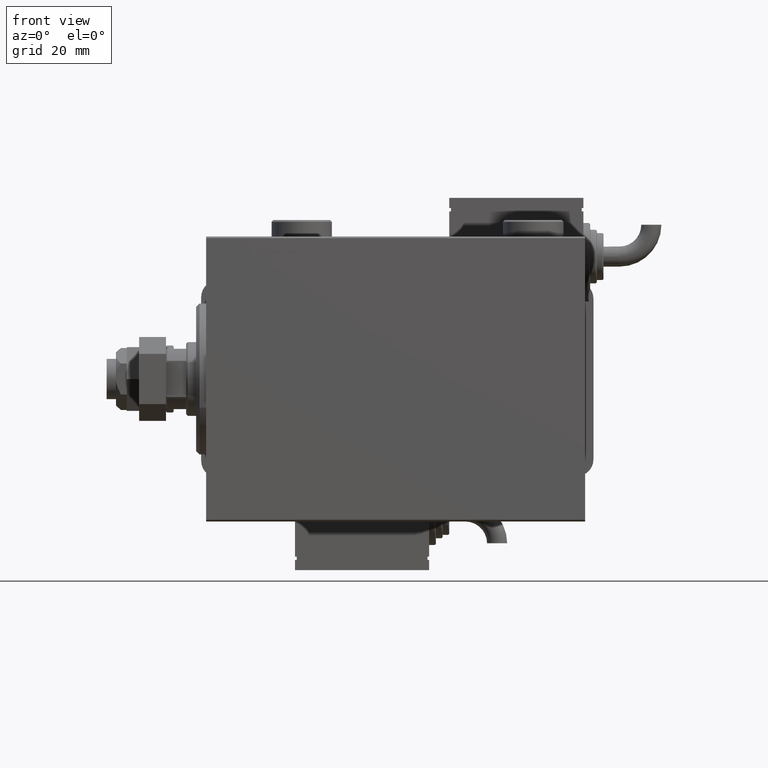
[diagram: clean part render]
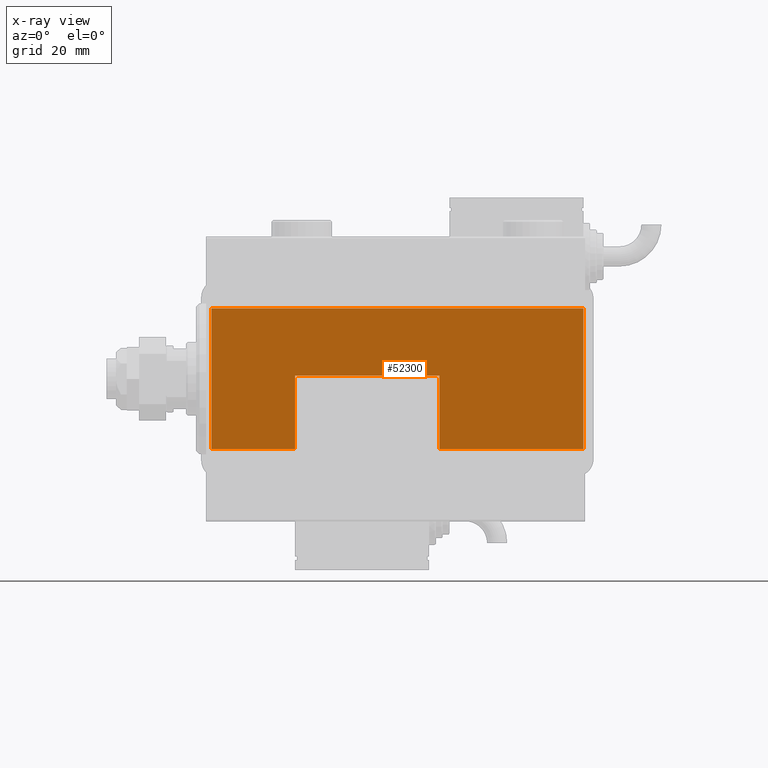
[diagram: x-ray — body ghosted, one internal face saturated and labeled with its STEP entity id]
A machine part, front view, then the same camera in x-ray: the body is ghosted and one INTERNAL B-rep face — a face not visible from any outside direction — is saturated and labeled: STEP entity #52300.
In plain terms, the highlighted planar face has unit normal (0, 1, -0).
Its self-contained STEP definition (entity closure, byte-faithful):
#116 = CARTESIAN_POINT ( 'NONE',  ( 1.000000000000014655, 22.79999999999999716, 114.0000000000000000 ) ) ;
#453 = DIRECTION ( 'NONE',  ( -1.000000000000000000, 0.000000000000000000, 0.000000000000000000 ) ) ;
#1025 = DIRECTION ( 'NONE',  ( 0.000000000000000000, -0.000000000000000000, 1.000000000000000000 ) ) ;
#1356 = CARTESIAN_POINT ( 'NONE',  ( -26.00000000000000000, 22.79999999999999716, 46.00000000000001421 ) ) ;
#1607 = VERTEX_POINT ( 'NONE', #54442 ) ;
#1870 = EDGE_CURVE ( 'NONE', #8438, #53932, #15825, .T. ) ;
#3238 = CARTESIAN_POINT ( 'NONE',  ( -26.00000000000000000, 22.79999999999999716, 89.00000000000001421 ) ) ;
#6552 = EDGE_CURVE ( 'NONE', #35659, #1607, #43270, .T. ) ;
#8438 = VERTEX_POINT ( 'NONE', #55611 ) ;
#8613 = LINE ( 'NONE', #58657, #9804 ) ;
#8809 = ORIENTED_EDGE ( 'NONE', *, *, #42600, .F. ) ;
#9362 = DIRECTION ( 'NONE',  ( 1.000000000000000000, -0.000000000000000000, 0.000000000000000000 ) ) ;
#9804 = VECTOR ( 'NONE', #30600, 1000.000000000000000 ) ;
#9919 = ORIENTED_EDGE ( 'NONE', *, *, #42299, .T. ) ;
#9985 = DIRECTION ( 'NONE',  ( -0.000000000000000000, -0.000000000000000000, 1.000000000000000000 ) ) ;
#11235 = CARTESIAN_POINT ( 'NONE',  ( 1.000000000000014655, 22.79999999999999716, 46.00000000000001421 ) ) ;
#11445 = EDGE_CURVE ( 'NONE', #21180, #8438, #43575, .T. ) ;
#13508 = ORIENTED_EDGE ( 'NONE', *, *, #1870, .T. ) ;
#13681 = ORIENTED_EDGE ( 'NONE', *, *, #39232, .F. ) ;
#14915 = CARTESIAN_POINT ( 'NONE',  ( 20.99999999999999645, 22.79999999999999716, 114.0000000000000000 ) ) ;
#15342 = VECTOR ( 'NONE', #9362, 1000.000000000000000 ) ;
#15361 = CARTESIAN_POINT ( 'NONE',  ( 1.000000000000014655, 22.79999999999999716, 89.00000000000001421 ) ) ;
#15825 = LINE ( 'NONE', #34627, #40777 ) ;
#16273 = DIRECTION ( 'NONE',  ( -1.000000000000000000, 0.000000000000000000, 0.000000000000000000 ) ) ;
#20196 = EDGE_LOOP ( 'NONE', ( #13681, #35595, #13508, #8809, #55689, #42705, #9919, #41123 ) ) ;
#20877 = CARTESIAN_POINT ( 'NONE',  ( -20.99999999999999645, 22.79999999999999716, 3.000000000000002665 ) ) ;
#21180 = VERTEX_POINT ( 'NONE', #11235 ) ;
#21734 = VERTEX_POINT ( 'NONE', #59104 ) ;
#24461 = LINE ( 'NONE', #116, #26202 ) ;
#24696 = PLANE ( 'NONE',  #51456 ) ;
#25307 = DIRECTION ( 'NONE',  ( 0.000000000000000000, -0.000000000000000000, 1.000000000000000000 ) ) ;
#25915 = DIRECTION ( 'NONE',  ( 0.000000000000000000, 1.000000000000000000, 0.000000000000000000 ) ) ;
#26202 = VECTOR ( 'NONE', #1025, 1000.000000000000000 ) ;
#29320 = FACE_OUTER_BOUND ( 'NONE', #20196, .T. ) ;
#30018 = DIRECTION ( 'NONE',  ( 0.000000000000000000, 0.000000000000000000, -1.000000000000000000 ) ) ;
#30457 = LINE ( 'NONE', #58516, #45287 ) ;
#30600 = DIRECTION ( 'NONE',  ( 0.000000000000000000, 0.000000000000000000, -1.000000000000000000 ) ) ;
#32164 = CARTESIAN_POINT ( 'NONE',  ( -26.00000000000000000, 22.79999999999999716, 114.0000000000000000 ) ) ;
#33344 = EDGE_CURVE ( 'NONE', #35790, #1607, #39658, .T. ) ;
#34627 = CARTESIAN_POINT ( 'NONE',  ( -20.99999999999999645, 22.79999999999999716, 0.000000000000000000 ) ) ;
#35595 = ORIENTED_EDGE ( 'NONE', *, *, #11445, .T. ) ;
#35659 = VERTEX_POINT ( 'NONE', #38744 ) ;
#35790 = VERTEX_POINT ( 'NONE', #48379 ) ;
#38744 = CARTESIAN_POINT ( 'NONE',  ( 20.99999999999998579, 22.79999999999999716, 3.000000000000002665 ) ) ;
#39232 = EDGE_CURVE ( 'NONE', #21180, #39544, #24461, .T. ) ;
#39544 = VERTEX_POINT ( 'NONE', #15361 ) ;
#39658 = LINE ( 'NONE', #32164, #49465 ) ;
#40777 = VECTOR ( 'NONE', #30018, 1000.000000000000000 ) ;
#41123 = ORIENTED_EDGE ( 'NONE', *, *, #60374, .T. ) ;
#42299 = EDGE_CURVE ( 'NONE', #35790, #21734, #8613, .T. ) ;
#42600 = EDGE_CURVE ( 'NONE', #35659, #53932, #30457, .T. ) ;
#42705 = ORIENTED_EDGE ( 'NONE', *, *, #33344, .F. ) ;
#43270 = LINE ( 'NONE', #14915, #55772 ) ;
#43575 = LINE ( 'NONE', #1356, #48968 ) ;
#45287 = VECTOR ( 'NONE', #16273, 1000.000000000000000 ) ;
#45465 = LINE ( 'NONE', #3238, #15342 ) ;
#48379 = CARTESIAN_POINT ( 'NONE',  ( -20.99999999999999645, 22.79999999999999716, 114.0000000000000000 ) ) ;
#48968 = VECTOR ( 'NONE', #453, 1000.000000000000000 ) ;
#49354 = CARTESIAN_POINT ( 'NONE',  ( -26.00000000000000000, 22.79999999999999716, 114.0000000000000000 ) ) ;
#49465 = VECTOR ( 'NONE', #60230, 1000.000000000000000 ) ;
#51456 = AXIS2_PLACEMENT_3D ( 'NONE', #49354, #25915, #25307 ) ;
#52300 = ADVANCED_FACE ( 'NONE', ( #29320 ), #24696, .F. ) ;
#53932 = VERTEX_POINT ( 'NONE', #20877 ) ;
#54442 = CARTESIAN_POINT ( 'NONE',  ( 20.99999999999998579, 22.79999999999999716, 114.0000000000000000 ) ) ;
#55611 = CARTESIAN_POINT ( 'NONE',  ( -20.99999999999999645, 22.79999999999999716, 46.00000000000001421 ) ) ;
#55689 = ORIENTED_EDGE ( 'NONE', *, *, #6552, .T. ) ;
#55772 = VECTOR ( 'NONE', #9985, 1000.000000000000000 ) ;
#58516 = CARTESIAN_POINT ( 'NONE',  ( -26.00000000000000000, 22.79999999999999716, 3.000000000000002665 ) ) ;
#58657 = CARTESIAN_POINT ( 'NONE',  ( -20.99999999999999645, 22.79999999999999716, 0.000000000000000000 ) ) ;
#59104 = CARTESIAN_POINT ( 'NONE',  ( -20.99999999999999645, 22.79999999999999716, 89.00000000000001421 ) ) ;
#60230 = DIRECTION ( 'NONE',  ( 1.000000000000000000, 0.000000000000000000, 0.000000000000000000 ) ) ;
#60374 = EDGE_CURVE ( 'NONE', #21734, #39544, #45465, .T. ) ;